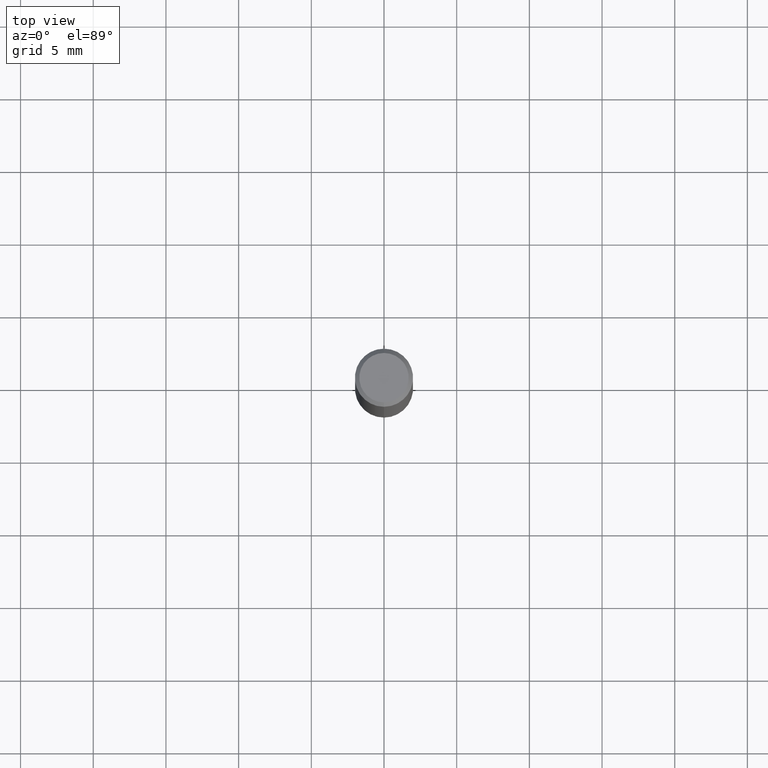
[diagram: clean part render]
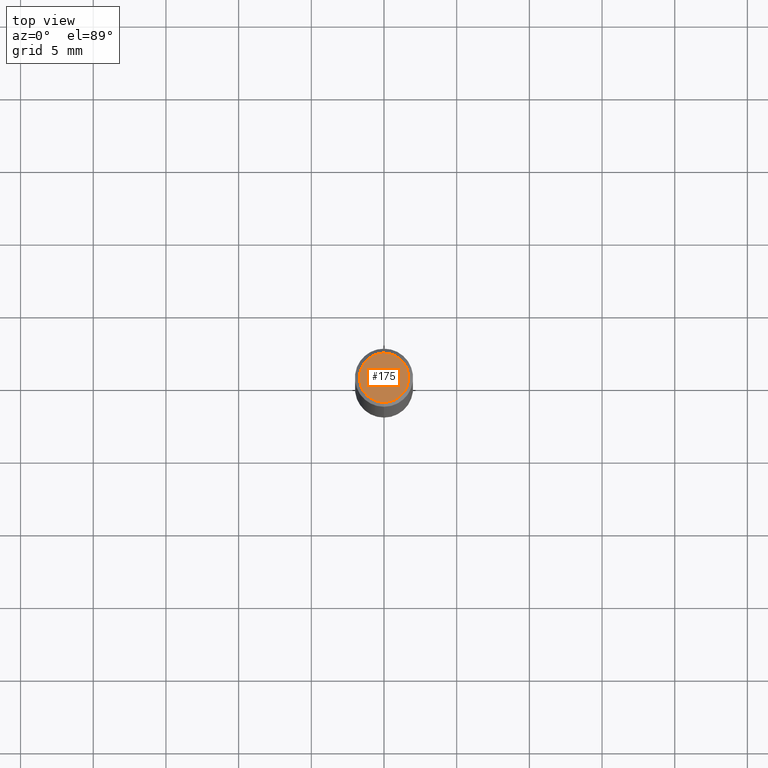
[diagram: same view with one face highlighted and labeled with its STEP entity id]
A machine part, top view. The second image highlights one B-rep face of the part: STEP entity #175.
In plain terms, the highlighted planar face has unit normal (-0, 0, 1).
Its self-contained STEP definition (entity closure, byte-faithful):
#159=VERTEX_POINT('',#397);
#175=ADVANCED_FACE('',(#413),#414,.T.);
#209=EDGE_CURVE('',#311,#159,#452,.T.);
#311=VERTEX_POINT('',#568);
#345=EDGE_CURVE('',#159,#311,#607,.T.);
#397=CARTESIAN_POINT('',(0.0,1.7,0.00999999999999801));
#413=FACE_OUTER_BOUND('',#676,.T.);
#414=PLANE('',#677);
#452=CIRCLE('',#728,1.7);
#568=CARTESIAN_POINT('',(2.08183080149804E-016,-1.7,0.00999999999999801));
#607=CIRCLE('',#927,1.7);
#676=EDGE_LOOP('',(#974,#975));
#677=AXIS2_PLACEMENT_3D('',#976,#977,#978);
#728=AXIS2_PLACEMENT_3D('',#1024,#1025,#1026);
#927=AXIS2_PLACEMENT_3D('',#1234,#1235,#1236);
#974=ORIENTED_EDGE('',*,*,#345,.F.);
#975=ORIENTED_EDGE('',*,*,#209,.F.);
#976=CARTESIAN_POINT('',(0.0,0.85,0.00999999999999801));
#977=DIRECTION('',(-0.0,0.0,1.0));
#978=DIRECTION('',(0.0,-1.0,0.0));
#1024=CARTESIAN_POINT('',(0.0,0.0,0.00999999999999801));
#1025=DIRECTION('',(0.0,0.0,-1.0));
#1026=DIRECTION('',(0.0,1.0,0.0));
#1234=CARTESIAN_POINT('',(0.0,0.0,0.00999999999999801));
#1235=DIRECTION('',(0.0,0.0,-1.0));
#1236=DIRECTION('',(0.0,1.0,0.0));